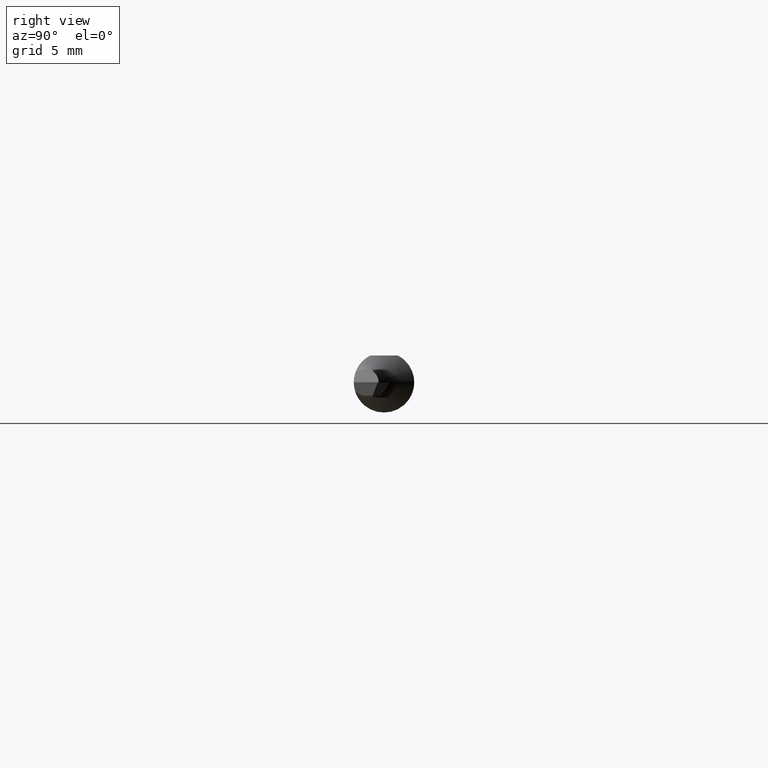
[diagram: clean part render]
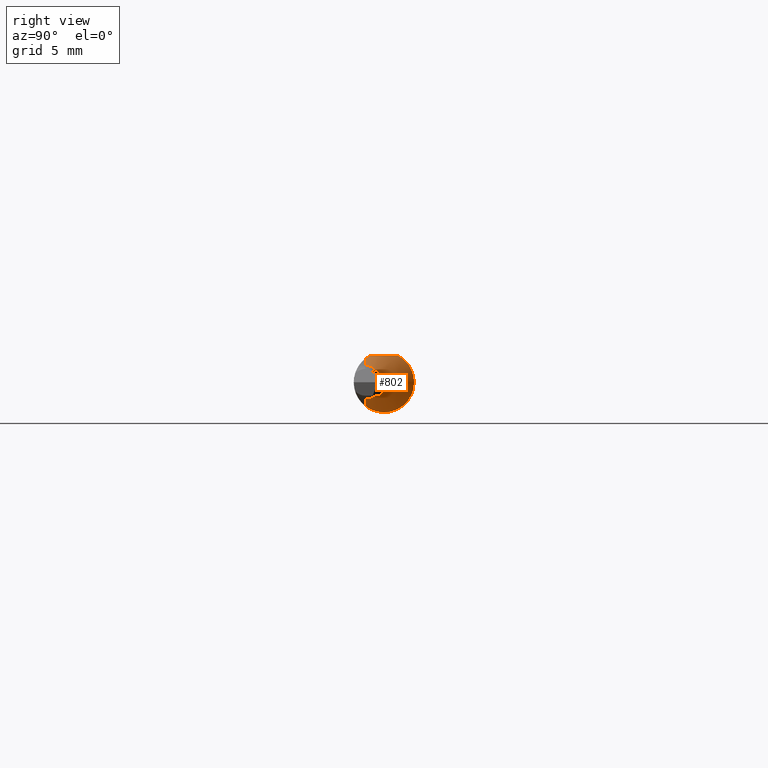
[diagram: same view with one face highlighted and labeled with its STEP entity id]
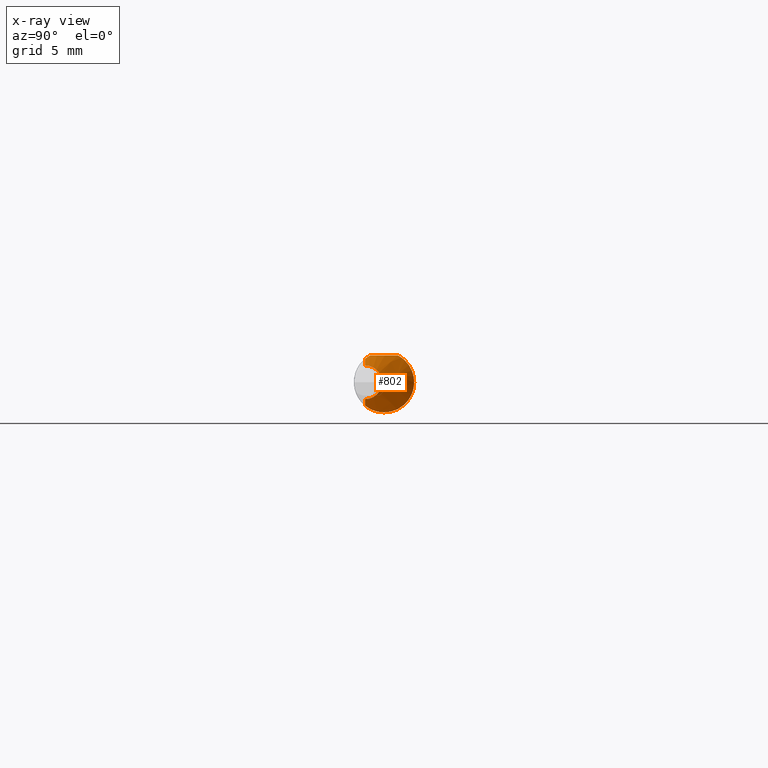
[diagram: x-ray of the same camera — body ghosted, the highlighted face saturated]
A machine part, right view. The second image highlights one B-rep face of the part: STEP entity #802.
The next image is the same camera in x-ray: the body ghosted, the highlighted face saturated — about 3% of this face is hidden behind the body in this view.
In plain terms, the highlighted conical surface has half-angle 45 deg.
Its self-contained STEP definition (entity closure, byte-faithful):
#4 = EDGE_CURVE ( 'NONE', #69, #52, #277, .T. ) ;
#21 = CARTESIAN_POINT ( 'NONE',  ( 0.9722224356403925682, 0.05995626412827578799, -0.01772608049554733403 ) ) ;
#34 = FACE_OUTER_BOUND ( 'NONE', #535, .T. ) ;
#44 = VECTOR ( 'NONE', #81, 39.37007874015748143 ) ;
#52 = VERTEX_POINT ( 'NONE', #769 ) ;
#63 = CARTESIAN_POINT ( 'NONE',  ( 0.9729442690431107099, 0.05809375549093097335, 0.02309712269758999389 ) ) ;
#69 = VERTEX_POINT ( 'NONE', #391 ) ;
#81 = DIRECTION ( 'NONE',  ( -0.7071067811865462405, 8.659560562354948882E-17, -0.7071067811865487940 ) ) ;
#85 = CARTESIAN_POINT ( 'NONE',  ( 0.9713154247326142299, 0.06230982057334929353, 0.005130711495986848419 ) ) ;
#103 = CARTESIAN_POINT ( 'NONE',  ( 0.9980987072500633328, 0.001730114354342544717, -0.06245995668959661296 ) ) ;
#107 = CARTESIAN_POINT ( 'NONE',  ( 1.023733208020211061, -0.03885000000000005810, 0.04876679197978883024 ) ) ;
#119 = DIRECTION ( 'NONE',  ( -1.000000000000000000, -0.000000000000000000, -0.000000000000000000 ) ) ;
#121 = CARTESIAN_POINT ( 'NONE',  ( 0.9851666200689770392, 0.02870365830342894511, 0.05534999999999997561 ) ) ;
#138 = ORIENTED_EDGE ( 'NONE', *, *, #493, .T. ) ;
#140 = CARTESIAN_POINT ( 'NONE',  ( 1.037677669529663449, -0.03885000000000000259, -0.03482233047033639339 ) ) ;
#165 = CARTESIAN_POINT ( 'NONE',  ( 0.9742893586426695229, 0.05467086465906029202, -0.03031740632397479651 ) ) ;
#174 = CARTESIAN_POINT ( 'NONE',  ( 0.9851666200689770392, 0.02870365830342894511, 0.05534999999999997561 ) ) ;
#182 = CARTESIAN_POINT ( 'NONE',  ( 0.9983330642226078133, 0.01109683746160214542, 0.05534999999999997561 ) ) ;
#189 = CARTESIAN_POINT ( 'NONE',  ( 0.9817422602534694454, 0.03640149399939510144, 0.05135802085830259295 ) ) ;
#196 = VECTOR ( 'NONE', #246, 39.37007874015748143 ) ;
#200 = CARTESIAN_POINT ( 'NONE',  ( 0.9788518337353812049, 0.04334661969057043013, 0.04571092020812050211 ) ) ;
#210 = EDGE_CURVE ( 'NONE', #363, #302, #821, .T. ) ;
#211 = CARTESIAN_POINT ( 'NONE',  ( 1.018733531415046745, -0.03233321753624625317, 0.05346776643160169179 ) ) ;
#235 = LINE ( 'NONE', #812, #44 ) ;
#246 = DIRECTION ( 'NONE',  ( -0.7071067811865462405, 0.000000000000000000, 0.7071067811865487940 ) ) ;
#252 = CARTESIAN_POINT ( 'NONE',  ( 1.014024832587619329, -0.02552496785297198381, -0.05702093782527752064 ) ) ;
#257 = EDGE_CURVE ( 'NONE', #52, #431, #692, .T. ) ;
#262 = CONICAL_SURFACE ( 'NONE', #280, 0.2274999999999998967, 0.7853981633974501664 ) ;
#273 = CARTESIAN_POINT ( 'NONE',  ( 1.006669642971511625, -0.003011374413207761232, 0.05534999999999997561 ) ) ;
#277 = B_SPLINE_CURVE_WITH_KNOTS ( 'NONE', 3,
 ( #330, #592, #751, #252, #407, #584, #926, #674, #103, #488, #658, #999, #496, #429, #735, #827, #651, #931, #165, #485, #21, #817, #985, #85, #358, #848, #63, #712, #516, #200, #189, #121 ),
 .UNSPECIFIED., .F., .F.,
 ( 4, 2, 2, 2, 2, 2, 2, 2, 2, 2, 2, 2, 2, 2, 2, 4 ),
 ( 0.001101739622096912195, 0.001452069894890159214, 0.001802400167683406232, 0.002152730440476653250, 0.002503060713269900268, 0.002853390986063147287, 0.003203721258856394305, 0.003554051531649641323, 0.003904381804442888775, 0.004254712077236135793, 0.004605042350029382378, 0.004955372622822629830, 0.005305702895615876415, 0.005656033168409123867, 0.006006363441202370451, 0.006707023986788866222 ),
 .UNSPECIFIED. ) ;
#280 = AXIS2_PLACEMENT_3D ( 'NONE', #448, #701, #381 ) ;
#299 = CARTESIAN_POINT ( 'NONE',  ( 1.016227708862855295, -0.02870365830342892083, 0.05534999999999997561 ) ) ;
#302 = VERTEX_POINT ( 'NONE', #107 ) ;
#322 = EDGE_CURVE ( 'NONE', #363, #490, #564, .T. ) ;
#330 = CARTESIAN_POINT ( 'NONE',  ( 1.023733208020211061, -0.03885000000000004422, -0.04876679197978883717 ) ) ;
#358 = CARTESIAN_POINT ( 'NONE',  ( 0.9715312839368115405, 0.06174610747500347552, 0.009795929746699049909 ) ) ;
#363 = VERTEX_POINT ( 'NONE', #500 ) ;
#381 = DIRECTION ( 'NONE',  ( 0.000000000000000000, 0.000000000000000000, 1.000000000000000000 ) ) ;
#391 = CARTESIAN_POINT ( 'NONE',  ( 1.023733208020211061, -0.03885000000000004422, -0.04876679197978883717 ) ) ;
#407 = CARTESIAN_POINT ( 'NONE',  ( 1.011663494146211262, -0.02189427596136639051, -0.05851335289745216578 ) ) ;
#424 = CARTESIAN_POINT ( 'NONE',  ( 1.015256075970327521, -0.02331491715496054537, 0.05534999999999998255 ) ) ;
#429 = CARTESIAN_POINT ( 'NONE',  ( 0.9830508205128779542, 0.03348191903871845093, -0.05277080232193186865 ) ) ;
#431 = VERTEX_POINT ( 'NONE', #530 ) ;
#433 = DIRECTION ( 'NONE',  ( 0.000000000000000000, 0.000000000000000000, 1.000000000000000000 ) ) ;
#448 = CARTESIAN_POINT ( 'NONE',  ( 0.8450000000000006395, -0.03885000000000000259, 0.000000000000000000 ) ) ;
#485 = CARTESIAN_POINT ( 'NONE',  ( 0.9727941773035805317, 0.05847937178585023432, -0.02209551185907620077 ) ) ;
#488 = CARTESIAN_POINT ( 'NONE',  ( 0.9939622945388311148, 0.009871926661208896281, -0.06169914545065514205 ) ) ;
#490 = VERTEX_POINT ( 'NONE', #140 ) ;
#493 = EDGE_CURVE ( 'NONE', #431, #302, #863, .T. ) ;
#496 = CARTESIAN_POINT ( 'NONE',  ( 0.9863768401225404547, 0.02596638437152509402, -0.05684666536293861427 ) ) ;
#500 = CARTESIAN_POINT ( 'NONE',  ( 1.037677669529663449, -0.03885000000000000259, 0.03482233047033639339 ) ) ;
#516 = CARTESIAN_POINT ( 'NONE',  ( 0.9754637940028884069, 0.05171048713799047264, 0.03512508805924585004 ) ) ;
#523 = ORIENTED_EDGE ( 'NONE', *, *, #917, .T. ) ;
#530 = CARTESIAN_POINT ( 'NONE',  ( 1.016227708862855295, -0.02870365830342892083, 0.05534999999999997561 ) ) ;
#535 = EDGE_LOOP ( 'NONE', ( #660, #523, #787, #668, #138, #977 ) ) ;
#540 = AXIS2_PLACEMENT_3D ( 'NONE', #842, #119, #433 ) ;
#546 = CARTESIAN_POINT ( 'NONE',  ( 1.021233181470025064, -0.03571182047060825898, 0.05126681852997484745 ) ) ;
#564 = CIRCLE ( 'NONE', #540, 0.03482233047033639339 ) ;
#571 = CARTESIAN_POINT ( 'NONE',  ( 0.8450000000000006395, -0.03885000000000000259, 0.2274999999999998967 ) ) ;
#584 = CARTESIAN_POINT ( 'NONE',  ( 1.007007020503531747, -0.01432349193528253961, -0.06081126019047899955 ) ) ;
#592 = CARTESIAN_POINT ( 'NONE',  ( 1.021302242280715200, -0.03579850963891901411, -0.05119775771928491287 ) ) ;
#651 = CARTESIAN_POINT ( 'NONE',  ( 0.9774289783678591359, 0.04685261614492793047, -0.04138162750821652858 ) ) ;
#658 = CARTESIAN_POINT ( 'NONE',  ( 0.9919428333759211514, 0.01401562437592556755, -0.06089969750970326140 ) ) ;
#660 = ORIENTED_EDGE ( 'NONE', *, *, #322, .T. ) ;
#662 = CARTESIAN_POINT ( 'NONE',  ( 0.9918909423092718836, 0.02001045346835476565, 0.05534999999999997561 ) ) ;
#668 = ORIENTED_EDGE ( 'NONE', *, *, #257, .T. ) ;
#674 = CARTESIAN_POINT ( 'NONE',  ( 1.000237676234067008, -0.002316031014453404265, -0.06243737786633629661 ) ) ;
#692 = B_SPLINE_CURVE_WITH_KNOTS ( 'NONE', 3,
 ( #174, #662, #182, #273, #997, #755, #424, #748 ),
 .UNSPECIFIED., .F., .F.,
 ( 4, 2, 2, 4 ),
 ( 0.004276405394202669255, 0.005113535593956955450, 0.005532100693834099414, 0.005950665793711242511 ),
 .UNSPECIFIED. ) ;
#701 = DIRECTION ( 'NONE',  ( -1.000000000000000000, -0.000000000000000000, -0.000000000000000000 ) ) ;
#710 = CARTESIAN_POINT ( 'NONE',  ( 1.023733208020211061, -0.03885000000000005810, 0.04876679197978883024 ) ) ;
#712 = CARTESIAN_POINT ( 'NONE',  ( 0.9745111317877577228, 0.05411016124583019338, 0.03131216942177360990 ) ) ;
#735 = CARTESIAN_POINT ( 'NONE',  ( 0.9814802025360713778, 0.03714017182121944621, -0.05027298511984105295 ) ) ;
#748 = CARTESIAN_POINT ( 'NONE',  ( 1.016227708862855295, -0.02870365830342892083, 0.05534999999999997561 ) ) ;
#751 = CARTESIAN_POINT ( 'NONE',  ( 1.018837401997772174, -0.03247053773144352451, -0.05337204805701500215 ) ) ;
#755 = CARTESIAN_POINT ( 'NONE',  ( 1.013525076401466052, -0.01798177169434002007, 0.05534999999999997561 ) ) ;
#769 = CARTESIAN_POINT ( 'NONE',  ( 0.9851666200689770392, 0.02870365830342894511, 0.05534999999999997561 ) ) ;
#787 = ORIENTED_EDGE ( 'NONE', *, *, #4, .T. ) ;
#802 = ADVANCED_FACE ( 'NONE', ( #34 ), #262, .T. ) ;
#812 = CARTESIAN_POINT ( 'NONE',  ( 0.8450000000000006395, -0.03884999999999997483, -0.2274999999999998967 ) ) ;
#817 = CARTESIAN_POINT ( 'NONE',  ( 0.9714656235680450003, 0.06191707889145184329, -0.008674265358168410309 ) ) ;
#821 = LINE ( 'NONE', #571, #196 ) ;
#827 = CARTESIAN_POINT ( 'NONE',  ( 0.9786750787484953529, 0.04381343202039987561, -0.04457744463698271042 ) ) ;
#842 = CARTESIAN_POINT ( 'NONE',  ( 1.037677669529663449, -0.03885000000000000259, 0.000000000000000000 ) ) ;
#848 = CARTESIAN_POINT ( 'NONE',  ( 0.9723414015603503158, 0.05964910899297361235, 0.01872233490410041626 ) ) ;
#863 = B_SPLINE_CURVE_WITH_KNOTS ( 'NONE', 3,
 ( #299, #211, #546, #710 ),
 .UNSPECIFIED., .F., .F.,
 ( 4, 4 ),
 ( 5.024367747766425392E-07, 0.0003607294561365229839 ),
 .UNSPECIFIED. ) ;
#917 = EDGE_CURVE ( 'NONE', #490, #69, #235, .T. ) ;
#926 = CARTESIAN_POINT ( 'NONE',  ( 1.004689213440747686, -0.01034100736282002678, -0.06161861505426482338 ) ) ;
#931 = CARTESIAN_POINT ( 'NONE',  ( 0.9752327272728315011, 0.05228920803170250542, -0.03425559017547473439 ) ) ;
#977 = ORIENTED_EDGE ( 'NONE', *, *, #210, .F. ) ;
#985 = CARTESIAN_POINT ( 'NONE',  ( 0.9712862019975229133, 0.06238594198962948978, -0.004102704279450235941 ) ) ;
#997 = CARTESIAN_POINT ( 'NONE',  ( 1.009223820819985740, -0.007844900568043339933, 0.05534999999999998255 ) ) ;
#999 = CARTESIAN_POINT ( 'NONE',  ( 0.9881491119890887243, 0.02206730022830220156, -0.05846576044194044114 ) ) ;